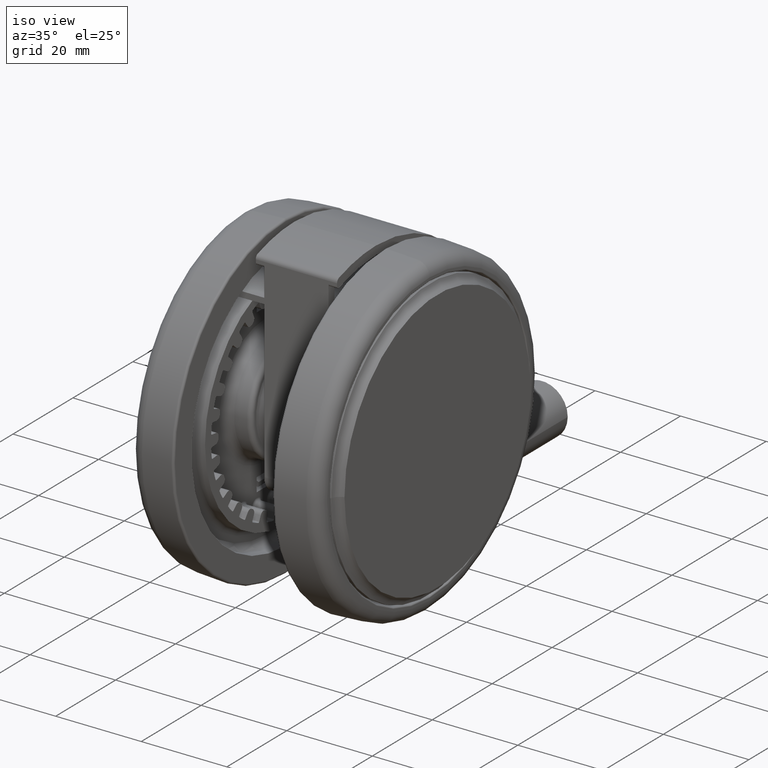
[diagram: clean part render]
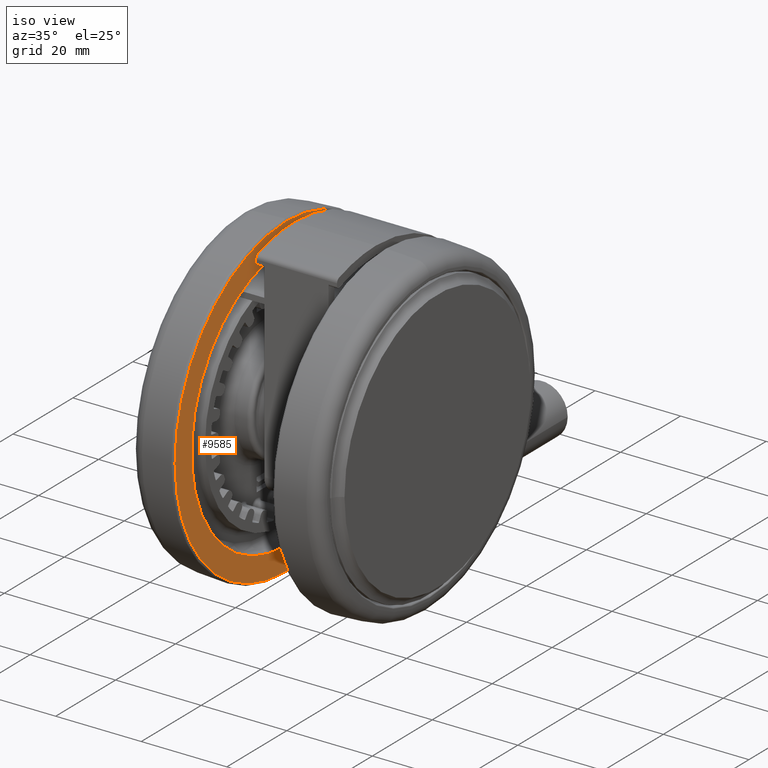
[diagram: same view with one face highlighted and labeled with its STEP entity id]
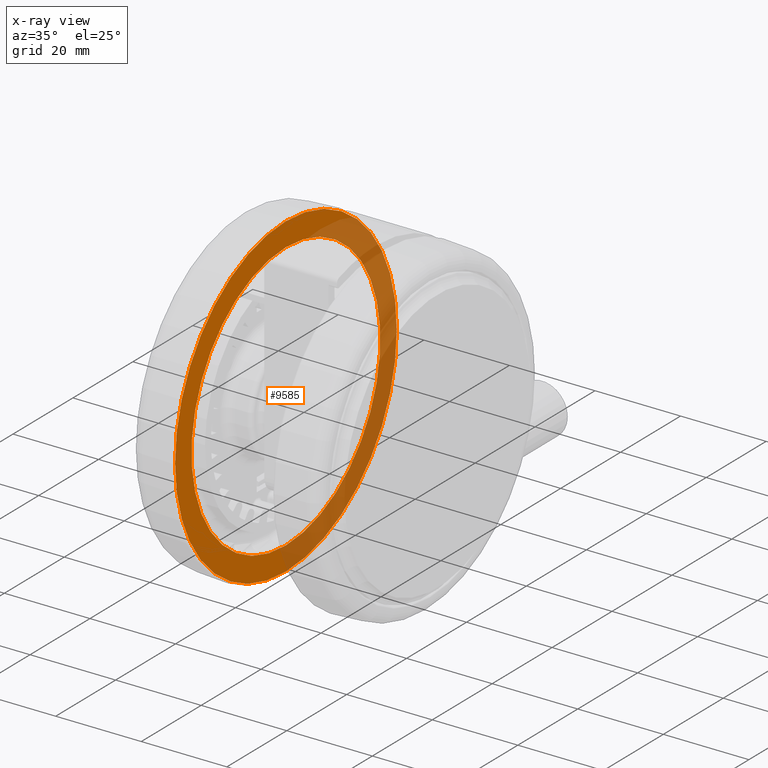
[diagram: x-ray of the same camera — body ghosted, the highlighted face saturated]
A machine part, iso view. The second image highlights one B-rep face of the part: STEP entity #9585.
The next image is the same camera in x-ray: the body ghosted, the highlighted face saturated — about 43% of this face is hidden behind the body in this view.
In plain terms, the highlighted planar face has unit normal (1, 0, 0).
Its self-contained STEP definition (entity closure, byte-faithful):
#1571 = ORIENTED_EDGE ( 'NONE', *, *, #11849, .F. ) ;
#2119 = CARTESIAN_POINT ( 'NONE',  ( 9.930983714597846400E-014, -31.49999999999998600, -35.40000000000010500 ) ) ;
#3111 = EDGE_CURVE ( 'NONE', #23154, #26124, #54724, .T. ) ;
#5260 = CARTESIAN_POINT ( 'NONE',  ( 0.0000000000000000000, 1.387778780781445700E-014, -35.40000000000007700 ) ) ;
#5305 = AXIS2_PLACEMENT_3D ( 'NONE', #17934, #49312, #22425 ) ;
#5584 = DIRECTION ( 'NONE',  ( 0.0000000000000000000, 0.0000000000000000000, 1.000000000000000000 ) ) ;
#6669 = VERTEX_POINT ( 'NONE', #25010 ) ;
#8511 = AXIS2_PLACEMENT_3D ( 'NONE', #39984, #13113, #44495 ) ;
#9585 = ADVANCED_FACE ( 'NONE', ( #16344, #38804 ), #19055, .T. ) ;
#9769 = DIRECTION ( 'NONE',  ( 3.275157922644209800E-015, -1.000000000000000000, 0.0000000000000000000 ) ) ;
#11849 = EDGE_CURVE ( 'NONE', #26124, #23154, #12711, .T. ) ;
#12711 = CIRCLE ( 'NONE', #5305, 37.00068523262270800 ) ;
#13113 = DIRECTION ( 'NONE',  ( 0.0000000000000000000, 0.0000000000000000000, 1.000000000000000000 ) ) ;
#14583 = CARTESIAN_POINT ( 'NONE',  ( 1.211830873828888800E-013, -37.00068523262269300, -35.40000000000009800 ) ) ;
#16344 = FACE_OUTER_BOUND ( 'NONE', #26291, .T. ) ;
#17934 = CARTESIAN_POINT ( 'NONE',  ( 0.0000000000000000000, 1.387778780781445700E-014, -35.40000000000007700 ) ) ;
#19055 = PLANE ( 'NONE',  #35201 ) ;
#21273 = DIRECTION ( 'NONE',  ( 0.0000000000000000000, 0.0000000000000000000, 1.000000000000000000 ) ) ;
#22425 = DIRECTION ( 'NONE',  ( 3.275157922644209800E-015, -1.000000000000000000, 0.0000000000000000000 ) ) ;
#22662 = AXIS2_PLACEMENT_3D ( 'NONE', #48172, #21273, #52677 ) ;
#23154 = VERTEX_POINT ( 'NONE', #45108 ) ;
#23413 = EDGE_CURVE ( 'NONE', #25714, #6669, #28877, .T. ) ;
#23526 = DIRECTION ( 'NONE',  ( -3.275157922644210200E-015, 1.000000000000000000, 0.0000000000000000000 ) ) ;
#25010 = CARTESIAN_POINT ( 'NONE',  ( -1.031674745632926200E-013, 31.50000000000001400, -35.40000000000010500 ) ) ;
#25259 = ORIENTED_EDGE ( 'NONE', *, *, #23413, .F. ) ;
#25714 = VERTEX_POINT ( 'NONE', #2119 ) ;
#25830 = CARTESIAN_POINT ( 'NONE',  ( 1.211830873828888800E-013, -37.00068523262269300, -35.40000000000007700 ) ) ;
#26124 = VERTEX_POINT ( 'NONE', #25830 ) ;
#26291 = EDGE_LOOP ( 'NONE', ( #1571, #32584 ) ) ;
#28877 = CIRCLE ( 'NONE', #8511, 31.50000000000000000 ) ;
#31194 = EDGE_CURVE ( 'NONE', #6669, #25714, #56273, .T. ) ;
#32584 = ORIENTED_EDGE ( 'NONE', *, *, #3111, .F. ) ;
#35201 = AXIS2_PLACEMENT_3D ( 'NONE', #14583, #5584, #23526 ) ;
#36580 = DIRECTION ( 'NONE',  ( 0.0000000000000000000, -0.0000000000000000000, -1.000000000000000000 ) ) ;
#38804 = FACE_BOUND ( 'NONE', #57655, .T. ) ;
#39984 = CARTESIAN_POINT ( 'NONE',  ( 0.0000000000000000000, 1.387778780781445700E-014, -35.40000000000010500 ) ) ;
#44495 = DIRECTION ( 'NONE',  ( -3.275157922644210200E-015, 1.000000000000000000, 0.0000000000000000000 ) ) ;
#45108 = CARTESIAN_POINT ( 'NONE',  ( -1.265626060262441700E-013, 37.00068523262271500, -35.40000000000007700 ) ) ;
#48172 = CARTESIAN_POINT ( 'NONE',  ( 0.0000000000000000000, 1.387778780781445700E-014, -35.40000000000010500 ) ) ;
#49312 = DIRECTION ( 'NONE',  ( 0.0000000000000000000, -0.0000000000000000000, -1.000000000000000000 ) ) ;
#52677 = DIRECTION ( 'NONE',  ( -3.275157922644210200E-015, 1.000000000000000000, 0.0000000000000000000 ) ) ;
#53314 = AXIS2_PLACEMENT_3D ( 'NONE', #5260, #36580, #9769 ) ;
#54724 = CIRCLE ( 'NONE', #53314, 37.00068523262270800 ) ;
#56273 = CIRCLE ( 'NONE', #22662, 31.50000000000000000 ) ;
#57105 = ORIENTED_EDGE ( 'NONE', *, *, #31194, .F. ) ;
#57655 = EDGE_LOOP ( 'NONE', ( #57105, #25259 ) ) ;